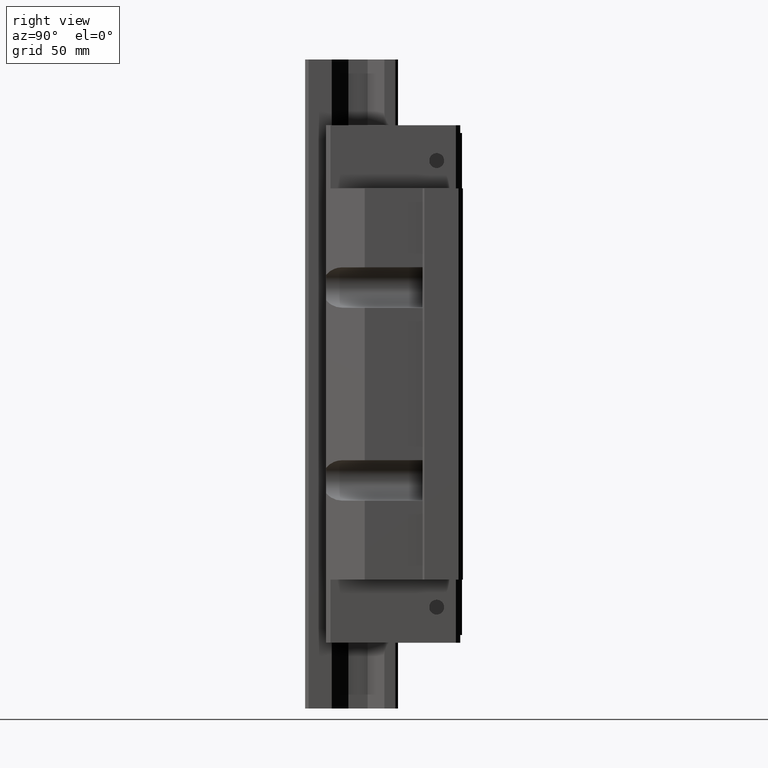
[diagram: clean part render]
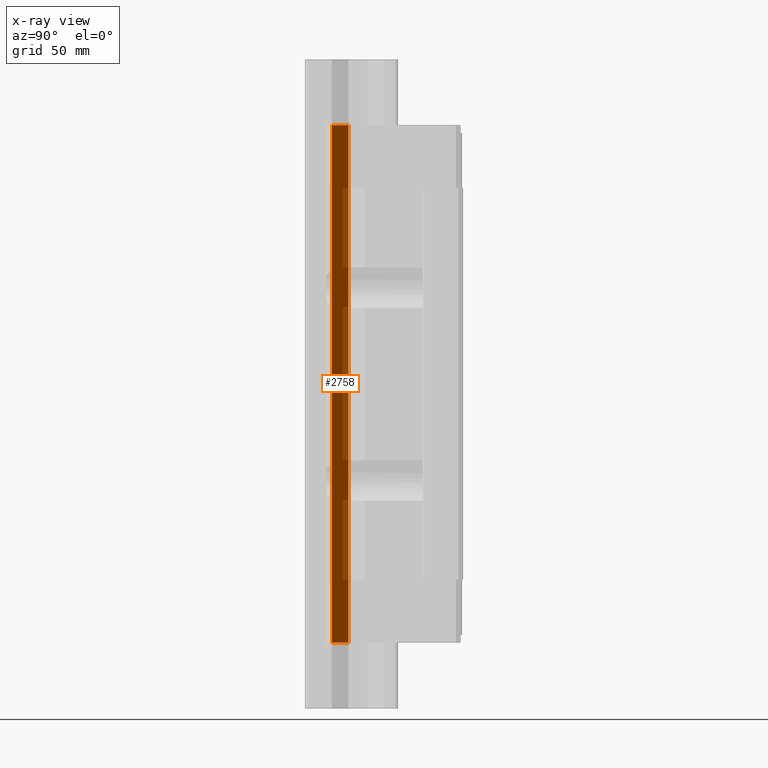
[diagram: x-ray — body ghosted, one internal face saturated and labeled with its STEP entity id]
A machine part, right view, then the same camera in x-ray: the body is ghosted and one INTERNAL B-rep face — a face not visible from any outside direction — is saturated and labeled: STEP entity #2758.
In plain terms, the highlighted planar face has unit normal (-0.7071, -0.7071, 0).
Its self-contained STEP definition (entity closure, byte-faithful):
#163=DIRECTION('',(7.071067585545E-1,-7.071068038186E-1,0.E0));
#164=VECTOR('',#163,1.343502977086E1);
#165=CARTESIAN_POINT('',(2.199993994421E1,-6.528096048387E1,-1.475E2));
#166=LINE('',#165,#164);
#417=DIRECTION('',(-7.071067693190E-1,7.071067930541E-1,0.E0));
#418=VECTOR('',#417,1.343502940587E1);
#419=CARTESIAN_POINT('',(3.149994018310E1,-7.478096104164E1,1.475E2));
#420=LINE('',#419,#418);
#567=DIRECTION('',(3.846189987968E-10,-1.365109252004E-9,-1.E0));
#568=VECTOR('',#567,2.95E2);
#569=CARTESIAN_POINT('',(3.149994018310E1,-7.478096104164E1,1.475E2));
#570=LINE('',#569,#568);
#571=DIRECTION('',(0.E0,0.E0,-1.E0));
#572=VECTOR('',#571,2.95E2);
#573=CARTESIAN_POINT('',(2.199993994421E1,-6.528096048387E1,1.475E2));
#574=LINE('',#573,#572);
#1699=CARTESIAN_POINT('',(2.199993994421E1,-6.528096048387E1,-1.475E2));
#1700=VERTEX_POINT('',#1699);
#1701=CARTESIAN_POINT('',(3.149994029657E1,-7.478096144435E1,-1.475E2));
#1702=VERTEX_POINT('',#1701);
#1823=CARTESIAN_POINT('',(3.149994018310E1,-7.478096104164E1,1.475E2));
#1824=VERTEX_POINT('',#1823);
#1825=CARTESIAN_POINT('',(2.199993994421E1,-6.528096048387E1,1.475E2));
#1826=VERTEX_POINT('',#1825);
#2746=CARTESIAN_POINT('',(2.199993994421E1,-6.528096048387E1,-8.E1));
#2747=DIRECTION('',(-7.071067812009E-1,-7.071067811722E-1,0.E0));
#2748=DIRECTION('',(7.071067811722E-1,-7.071067812009E-1,0.E0));
#2749=AXIS2_PLACEMENT_3D('',#2746,#2747,#2748);
#2750=PLANE('',#2749);
#2751=ORIENTED_EDGE('',*,*,#2740,.T.);
#2752=ORIENTED_EDGE('',*,*,#2240,.F.);
#2754=ORIENTED_EDGE('',*,*,#2753,.F.);
#2755=ORIENTED_EDGE('',*,*,#2587,.F.);
#2756=EDGE_LOOP('',(#2751,#2752,#2754,#2755));
#2757=FACE_OUTER_BOUND('',#2756,.F.);
#2758=ADVANCED_FACE('',(#2757),#2750,.T.);
#2240=EDGE_CURVE('',#1700,#1702,#166,.T.);
#2587=EDGE_CURVE('',#1824,#1826,#420,.T.);
#2740=EDGE_CURVE('',#1824,#1702,#570,.T.);
#2753=EDGE_CURVE('',#1826,#1700,#574,.T.);